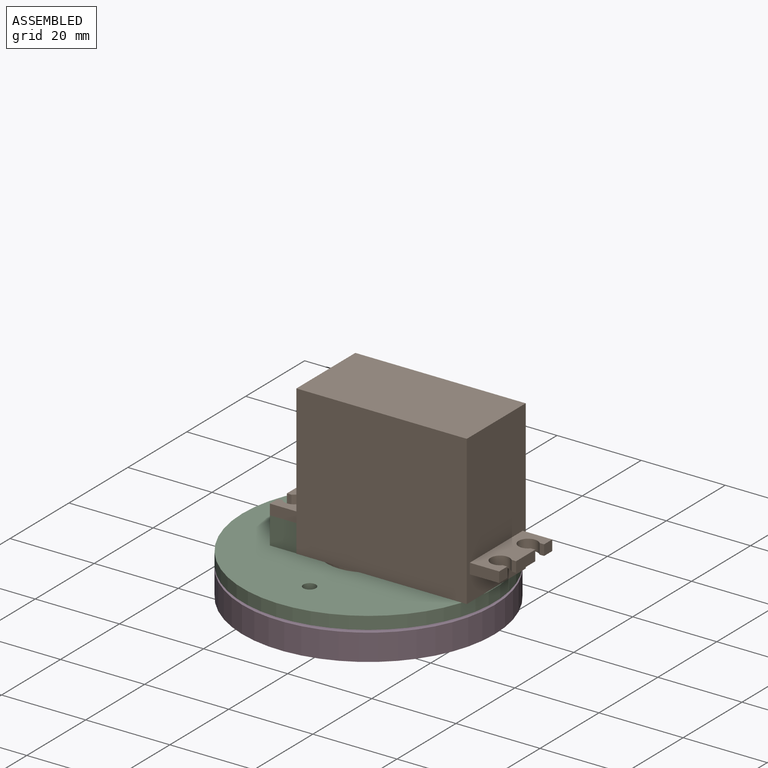
[diagram: assembled view]
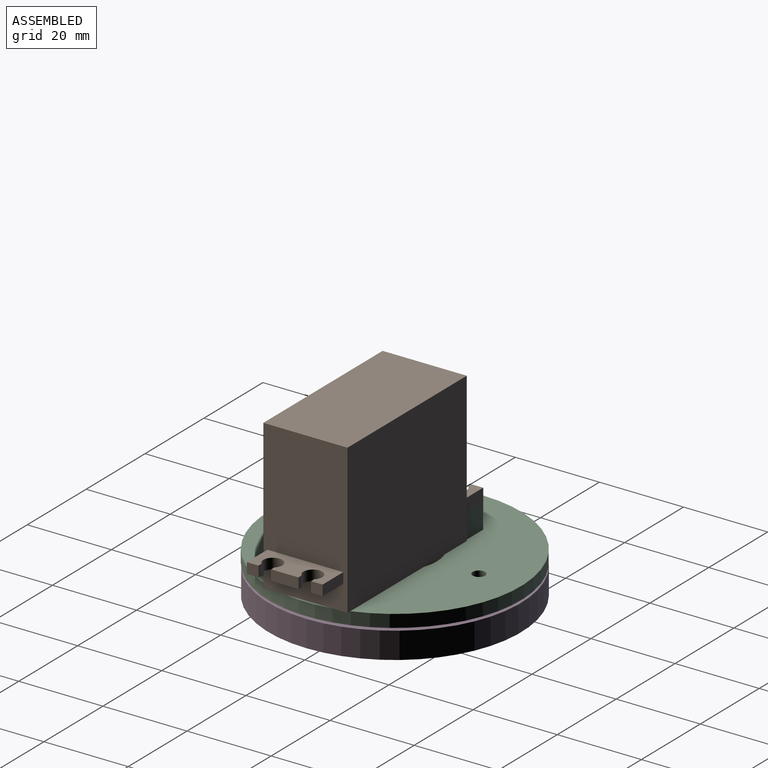
[diagram: assembled view, second angle]
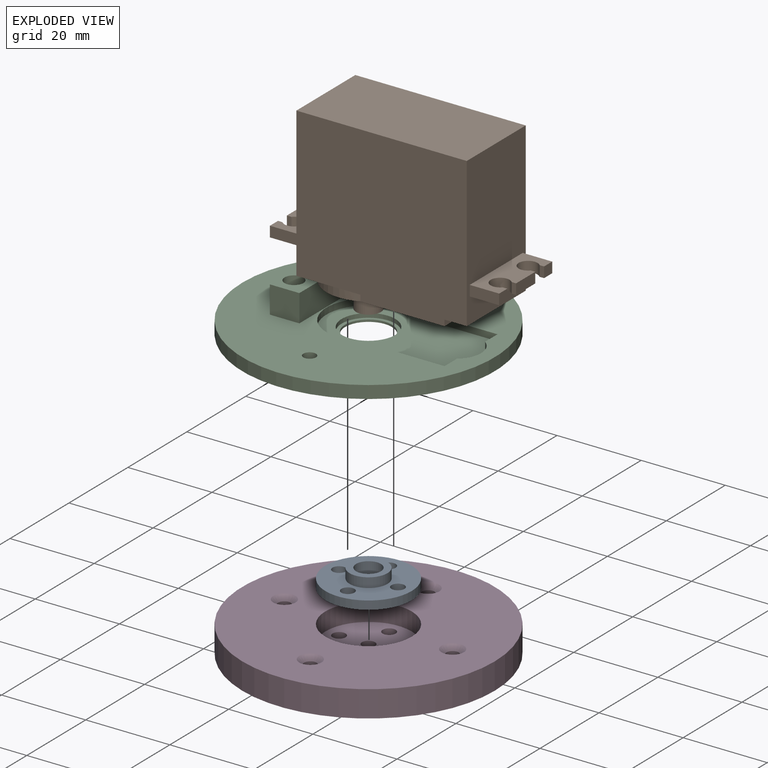
[diagram: exploded view]
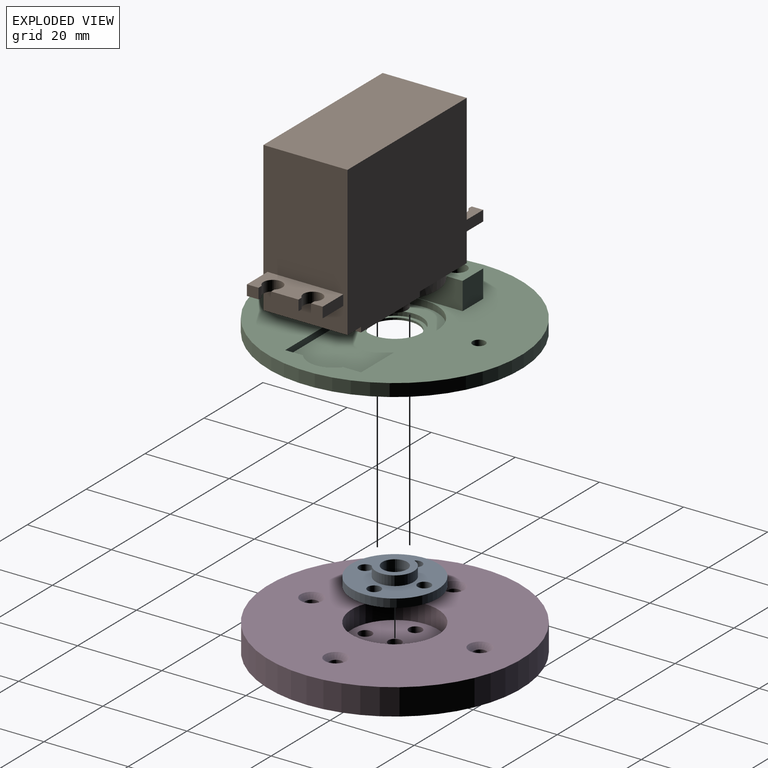
[diagram: exploded view, second angle]
ASSEMBLY  parts=4 mates=3
PART A: 12 faces, bbox 20.5x20.5x4.3 mm
  f0: cylinder r=1.55mm len=3.1mm, axis (0,0,-1), area 2.9mm2, adj f7,f11
  f1: cylinder r=1.55mm len=3.1mm, axis (0,0,-1), area 19.5mm2, adj f6,f7
  f2: cylinder r=1.55mm len=3.1mm, axis (0,0,-1), area 19.5mm2, adj f6,f7
  f3: cylinder r=1.55mm len=3.1mm, axis (0,0,-1), area 19.5mm2, adj f6,f7
  f4: cylinder r=1.55mm len=3.1mm, axis (0,0,-1), area 19.5mm2, adj f6,f7
  f5: cylinder r=10.25mm len=20.5mm, axis (0,0,-1), area 128.8mm2, adj f6,f7
  f6: plane 20.5x20.5mm, normal (0,0,1), area 236.3mm2, adj f1,f2,f3,f4,f5,f8
  f7: plane 20.5x20.5mm, normal (0,0,-1), area 292.3mm2, adj f0,f1,f2,f3,f4,f5
  f8: cylinder r=4.5mm len=9mm, axis (0,0,-1), area 65mm2, adj f6,f9
  f9: plane 9x9mm, normal (0,0,1), area 36.3mm2, adj f8,f10
  f10: cylinder r=2.95mm len=5.9mm, axis (0,0,1), area 74.1mm2, adj f9,f11
  f11: plane 5.9x5.9mm, normal (0,0,1), area 19.8mm2, adj f0,f10
PART B: 46 faces, bbox 54.5x43.6x20 mm
  f0: plane 35.5x20mm, normal (-1,0,0), area 665mm2, adj f5,f6,f7,f8,f31,f32,f33,f39
  f1: plane 35.5x20mm, normal (1,0,0), area 665mm2, adj f4,f6,f7,f8,f18,f24,f25,f38
  f2: plane 12.8x12.8mm, normal (0,1,0), area 31mm2, adj f15,f16
  f3: plane 36.76x20mm, normal (0,1,0), area 488.8mm2, adj f9,f10,f11,f12,f13,f14,f15
  f4: plane 30.36x20mm, normal (0,1,0), area 146.7mm2, adj f1,f6,f7,f9,f10,f11,f12,f13
  f5: plane 20x10.14mm, normal (0,1,0), area 45.7mm2, adj f0,f6,f7,f9
  f6: plane 40.5x35.5mm, normal (0,0,1), area 1437.8mm2, adj f0,f1,f4,f5,f8
  f7: plane 40.5x35.5mm, normal (0,0,-1), area 1437.8mm2, adj f0,f1,f4,f5,f8
  f8: plane 40.5x20mm, normal (0,-1,0), area 810mm2, adj f0,f1,f6,f7
  f9: cylinder r=10mm len=20mm, axis (0,-1,0), area 80.9mm2, adj f3,f4,f5,f10,f14
  f10: plane 20x2mm, normal (0,0,1), area 40mm2, adj f3,f4,f9,f11
  f11: plane 4.2x2mm, normal (1,0,0), area 8.4mm2, adj f3,f4,f10,f12
  f12: cylinder r=6mm len=9.6mm, axis (0,-1,0), area 22.3mm2, adj f3,f4,f11,f13
  f13: plane 4.2x2mm, normal (1,0,0), area 8.4mm2, adj f3,f4,f12,f14
  f14: plane 20x2mm, normal (0,0,-1), area 40mm2, adj f3,f4,f9,f13
  f15: cylinder r=6.4mm len=12.8mm, axis (0,-1,0), area 40.2mm2, adj f2,f3
  f16: cylinder r=5.58mm len=11.15mm, axis (0,-1,0), area 17.5mm2, adj f2,f17
  f17: plane 11.15x11.15mm, normal (0,1,0), area 70.3mm2, adj f16,f44
  f18: plane 7x2.5mm, normal (0,0,-1), area 17.5mm2, adj f1,f19,f24,f25
  f19: plane 2.75x2.5mm, normal (1,0,0), area 6.9mm2, adj f18,f20,f24,f25
  f20: plane 2.5x1.07mm, normal (0,0,1), area 2.7mm2, adj f19,f21,f24,f25
  f21: cylinder r=2.25mm len=4.5mm, axis (0,1,0), area 27.1mm2, adj f20,f22,f24,f25
  f22: plane 2.5x1.07mm, normal (0,0,-1), area 2.7mm2, adj f21,f23,f24,f25
  f23: plane 6.5x2.5mm, normal (1,0,0), area 16.2mm2, adj f22,f24,f25,f34
  f24: plane 18x7mm, normal (0,-1,0), area 90.1mm2, adj f1,f18,f19,f20,f21,f22,f23,f34
  f25: plane 18x7mm, normal (0,1,0), area 90.1mm2, adj f1,f18,f19,f20,f21,f22,f23,f34
  f26: plane 6.5x2.5mm, normal (-1,0,0), area 16.2mm2, adj f27,f32,f33,f43
  f27: plane 2.5x1.07mm, normal (0,0,-1), area 2.7mm2, adj f26,f28,f32,f33
  f28: cylinder r=2.25mm len=4.5mm, axis (0,1,0), area 27.1mm2, adj f27,f29,f32,f33
  f29: plane 2.5x1.07mm, normal (0,0,1), area 2.7mm2, adj f28,f30,f32,f33
  f30: plane 2.75x2.5mm, normal (-1,0,0), area 6.9mm2, adj f29,f31,f32,f33
  f31: plane 7x2.5mm, normal (0,0,-1), area 17.5mm2, adj f0,f30,f32,f33
  f32: plane 18x7mm, normal (0,-1,0), area 90.1mm2, adj f0,f26,f27,f28,f29,f30,f31,f39
  f33: plane 18x7mm, normal (0,1,0), area 90.1mm2, adj f0,f26,f27,f28,f29,f30,f31,f39
  f34: plane 2.5x1.07mm, normal (0,0,1), area 2.7mm2, adj f23,f24,f25,f35
  f35: cylinder r=2.25mm len=4.5mm, axis (0,1,0), area 27.1mm2, adj f24,f25,f34,f36
  f36: plane 2.5x1.07mm, normal (0,0,-1), area 2.7mm2, adj f24,f25,f35,f37
  f37: plane 2.75x2.5mm, normal (1,0,0), area 6.9mm2, adj f24,f25,f36,f38
  f38: plane 7x2.5mm, normal (0,0,1), area 17.5mm2, adj f1,f24,f25,f37
  f39: plane 7x2.5mm, normal (0,0,1), area 17.5mm2, adj f0,f32,f33,f40
  f40: plane 2.75x2.5mm, normal (-1,0,0), area 6.9mm2, adj f32,f33,f39,f41
  f41: plane 2.5x1.07mm, normal (0,0,-1), area 2.7mm2, adj f32,f33,f40,f42
  f42: cylinder r=2.25mm len=4.5mm, axis (0,1,0), area 27.1mm2, adj f32,f33,f41,f43
  f43: plane 2.5x1.07mm, normal (0,0,1), area 2.7mm2, adj f26,f32,f33,f42
  f44: cylinder r=2.95mm len=5.9mm, axis (0,-1,0), area 85.3mm2, adj f17,f45
  f45: plane 5.9x5.9mm, normal (0,1,0), area 27.3mm2, adj f44
PART C: 26 faces, bbox 60x9.5x60 mm
  f0: plane 60x60mm, normal (0,-1,0), area 2062.7mm2, adj f2,f4,f5,f6,f7,f8,f9,f13
  f1: cylinder r=5.58mm len=11.15mm, axis (0,1,0), area 17.5mm2, adj f3,f10
  f2: cylinder r=30mm len=60mm, axis (0,1,0), area 565.5mm2, adj f0,f3
  f3: plane 60x60mm, normal (0,1,0), area 2631.8mm2, adj f1,f2,f15,f16,f21,f23,f25
  f4: cylinder r=10mm len=20mm, axis (0,-1,0), area 60.7mm2, adj f0,f5,f9,f11
  f5: plane 20x1.5mm, normal (0,0,-1), area 30mm2, adj f0,f4,f6,f11
  f6: plane 4.2x1.5mm, normal (-1,0,0), area 6.3mm2, adj f0,f5,f7,f11
  f7: cylinder r=6mm len=9.6mm, axis (0,-1,0), area 16.7mm2, adj f0,f6,f8,f11
  f8: plane 4.2x1.5mm, normal (-1,0,0), area 6.3mm2, adj f0,f7,f9,f11
  f9: plane 20x1.5mm, normal (0,0,1), area 30mm2, adj f0,f4,f8,f11
  f10: plane 12.8x12.8mm, normal (0,-1,0), area 31mm2, adj f1,f12
  f11: plane 36.76x20mm, normal (0,-1,0), area 488.8mm2, adj f4,f5,f6,f7,f8,f9,f12
  f12: cylinder r=6.4mm len=12.8mm, axis (0,-1,0), area 40.2mm2, adj f10,f11
  f13: plane 7x6.5mm, normal (0,0,1), area 45.5mm2, adj f0,f14,f17,f18
  f14: plane 18x7mm, normal (0,-1,0), area 94.2mm2, adj f13,f15,f16,f17,f18,f19
  f15: cylinder r=2.25mm len=9.5mm, axis (0,-1,0), area 134.3mm2, adj f3,f14
  f16: cylinder r=2.25mm len=9.5mm, axis (0,-1,0), area 134.3mm2, adj f3,f14
  f17: plane 18x6.5mm, normal (1,0,0), area 117mm2, adj f0,f13,f14,f19
  f18: plane 18x6.5mm, normal (-1,0,0), area 117mm2, adj f0,f13,f14,f19
  f19: plane 7x6.5mm, normal (0,0,-1), area 45.5mm2, adj f0,f14,f17,f18
  f20: cylinder r=1.5mm len=3mm, axis (0,1,0), area 17.4mm2, adj f0,f21
  f21: cone r=1.5mm half-angle=45deg, axis (0,1,0), area 21.2mm2, adj f3,f20
  f22: cylinder r=1.5mm len=3mm, axis (0,1,0), area 17.4mm2, adj f0,f23
  f23: cone r=1.5mm half-angle=45deg, axis (0,1,0), area 21.2mm2, adj f3,f22
  f24: cylinder r=1.5mm len=3mm, axis (0,1,0), area 17.4mm2, adj f0,f25
  f25: cone r=1.5mm half-angle=45deg, axis (0,1,0), area 21.2mm2, adj f3,f24
PART D: 18 faces, bbox 60x60x6.3 mm
  f0: plane 60x60mm, normal (0,0,1), area 2409.1mm2, adj f1,f2,f11,f13,f15,f17
  f1: cylinder r=30mm len=60mm, axis (0,0,-1), area 1187.5mm2, adj f0,f9
  f2: cylinder r=10.25mm len=20.5mm, axis (0,0,-1), area 276.9mm2, adj f0,f3
  f3: plane 20.5x20.5mm, normal (0,0,1), area 292.3mm2, adj f2,f4,f5,f6,f7,f8
  f4: cylinder r=1.55mm len=3.1mm, axis (0,0,1), area 19.5mm2, adj f3,f9
  f5: cylinder r=1.55mm len=3.1mm, axis (0,0,1), area 19.5mm2, adj f3,f9
  f6: cylinder r=1.55mm len=3.1mm, axis (0,0,1), area 19.5mm2, adj f3,f9
  f7: cylinder r=1.55mm len=3.1mm, axis (0,0,1), area 19.5mm2, adj f3,f9
  f8: cylinder r=1.55mm len=3.1mm, axis (0,0,1), area 19.5mm2, adj f3,f9
  f9: plane 60x60mm, normal (0,0,-1), area 2761.4mm2, adj f1,f4,f5,f6,f7,f8,f10,f12
  f10: cylinder r=1.5mm len=5.15mm, axis (0,0,1), area 48.5mm2, adj f9,f11
  f11: cone r=1.5mm half-angle=45deg, axis (0,0,1), area 21.2mm2, adj f0,f10
  f12: cylinder r=1.5mm len=5.15mm, axis (0,0,1), area 48.5mm2, adj f9,f13
  f13: cone r=1.5mm half-angle=45deg, axis (0,0,1), area 21.2mm2, adj f0,f12
  f14: cylinder r=1.5mm len=5.15mm, axis (0,0,1), area 48.5mm2, adj f9,f15
  f15: cone r=1.5mm half-angle=45deg, axis (0,0,1), area 21.2mm2, adj f0,f14
  f16: cylinder r=1.5mm len=5.15mm, axis (0,0,1), area 48.5mm2, adj f9,f17
  f17: cone r=1.5mm half-angle=45deg, axis (0,0,1), area 21.2mm2, adj f0,f16
PLACE A t=(29.43,-6,-9.5)mm
PLACE B rot(axis=(-1,0,0),90deg) t=(39.54,-6,34.4)mm
PLACE C rot(axis=(-1,0,0),90deg) t=(39.54,-6,34.4)mm
PLACE D t=(29.43,-6,-9.5)mm
MATE fastened C.f1 <-> B.f9  axis (0,0,-1) through (29.43,-6,-4.6)mm
MATE fastened A.f0 <-> D.f1  axis (0,0,-1) through (29.43,-6,-9.5)mm
MATE revolute B.f9 <-> A.f0  axis (0,0,-1) through (29.43,-6,-9.2)mm
